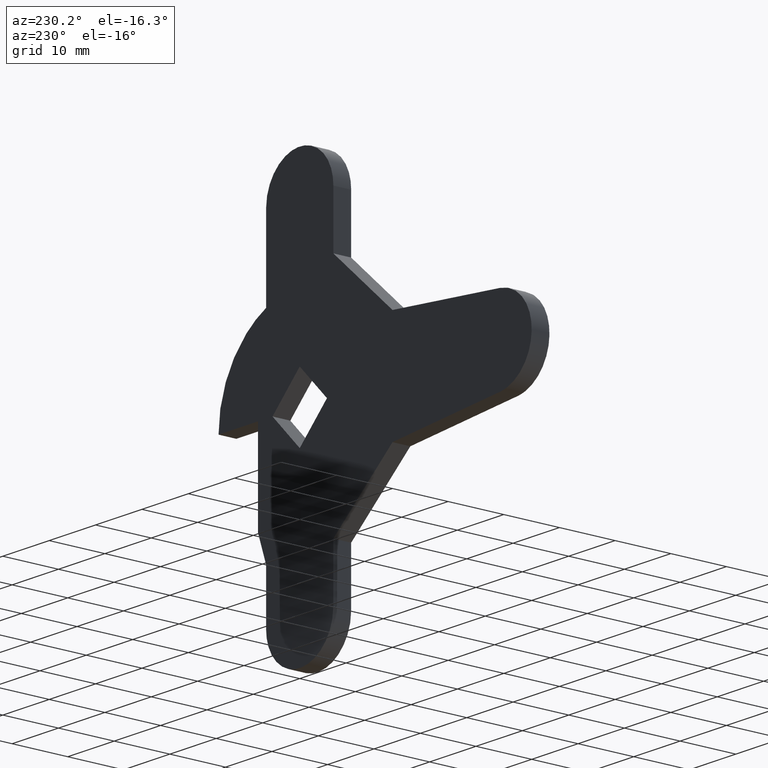
[diagram: clean part render]
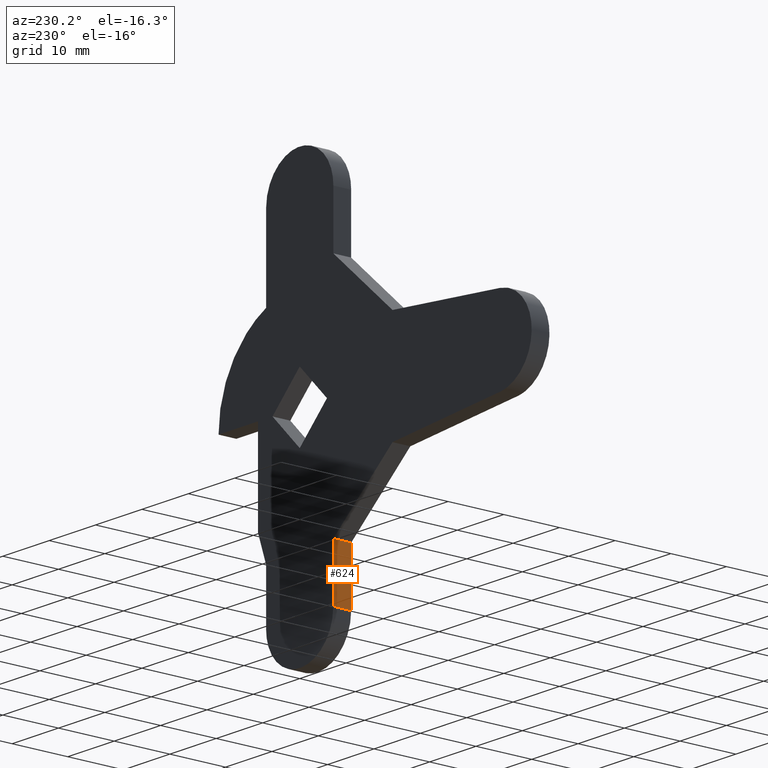
[diagram: same view with one face highlighted and labeled with its STEP entity id]
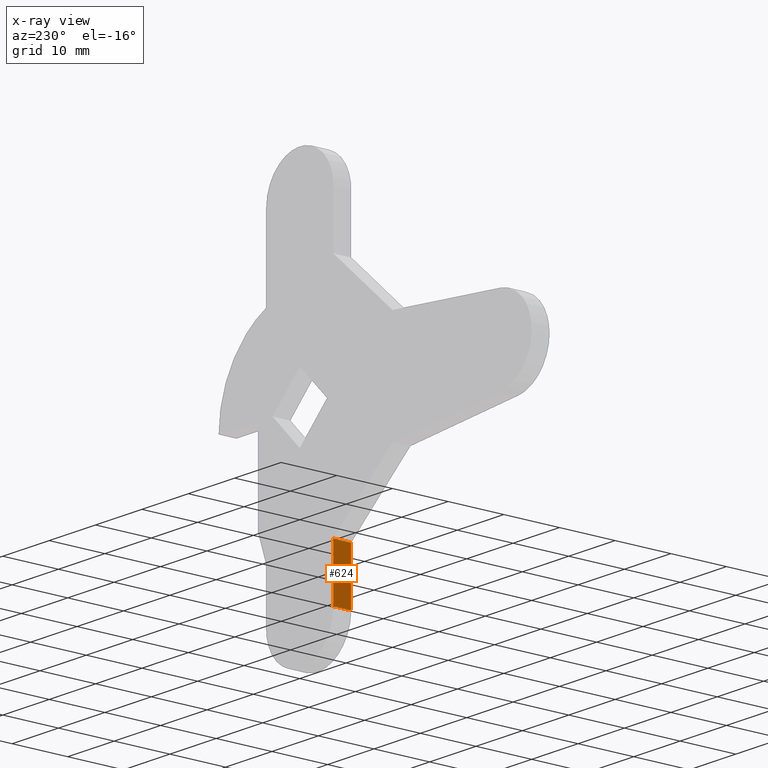
[diagram: x-ray of the same camera — body ghosted, the highlighted face saturated]
A machine part, auxiliary view. The second image highlights one B-rep face of the part: STEP entity #624.
The next image is the same camera in x-ray: the body ghosted, the highlighted face saturated — about 0% of this face is hidden behind the body in this view.
In plain terms, the highlighted face is a freeform B-spline surface patch.
Its self-contained STEP definition (entity closure, byte-faithful):
#132=CARTESIAN_POINT('',(-7.250000000000000,0.0,-30.250000000000000));
#133=VERTEX_POINT('',#132);
#149=CARTESIAN_POINT('',(-7.250000000000000,0.0,-20.500000000000000));
#150=VERTEX_POINT('',#149);
#151=CARTESIAN_POINT('',(-7.250000000000000,0.0,-20.500000000000000));
#152=CARTESIAN_POINT('',(-7.250000000000000,0.0,-30.250000000000000));
#153=QUASI_UNIFORM_CURVE('',1,(#151,#152),.UNSPECIFIED.,.F.,.U.);
#154=EDGE_CURVE('',#150,#133,#153,.T.);
#270=CARTESIAN_POINT('',(-7.250000000000000,-3.200000000000000,-20.500000000000000));
#271=VERTEX_POINT('',#270);
#277=CARTESIAN_POINT('',(-7.250000000000000,-3.200000000000000,-30.250000000000000));
#278=VERTEX_POINT('',#277);
#279=CARTESIAN_POINT('',(-7.250000000000000,-3.200000000000000,-20.500000000000000));
#280=CARTESIAN_POINT('',(-7.250000000000000,-3.200000000000000,-30.250000000000000));
#281=QUASI_UNIFORM_CURVE('',1,(#279,#280),.UNSPECIFIED.,.F.,.U.);
#282=EDGE_CURVE('',#271,#278,#281,.T.);
#601=CARTESIAN_POINT('',(-7.250000000000000,-3.200000000000000,-30.250000000000000));
#602=CARTESIAN_POINT('',(-7.250000000000000,0.0,-30.250000000000000));
#603=QUASI_UNIFORM_CURVE('',1,(#601,#602),.UNSPECIFIED.,.F.,.U.);
#604=EDGE_CURVE('',#278,#133,#603,.T.);
#609=CARTESIAN_POINT('',(-7.250000000000000,-3.359840053876400,-20.012987518897390));
#610=CARTESIAN_POINT('',(-7.250000000000000,-3.359840053876400,-30.737012742617988));
#611=CARTESIAN_POINT('',(-7.250000000000000,0.159840082486629,-20.012987518897390));
#612=CARTESIAN_POINT('',(-7.250000000000000,0.159840082486629,-30.737012742617988));
#613=B_SPLINE_SURFACE_WITH_KNOTS('',1,1,((#609,#611),(#610,#612)),.UNSPECIFIED.,.F.,.F.,.U.,(2,2),(2,2),(0.0,10.724025223720609),(0.0,3.519680136363030),.UNSPECIFIED.);
#614=ORIENTED_EDGE('',*,*,#154,.T.);
#615=ORIENTED_EDGE('',*,*,#604,.F.);
#616=ORIENTED_EDGE('',*,*,#282,.F.);
#617=CARTESIAN_POINT('',(-7.250000000000000,-3.200000000000000,-20.500000000000000));
#618=CARTESIAN_POINT('',(-7.250000000000000,0.0,-20.500000000000000));
#619=QUASI_UNIFORM_CURVE('',1,(#617,#618),.UNSPECIFIED.,.F.,.U.);
#620=EDGE_CURVE('',#271,#150,#619,.T.);
#621=ORIENTED_EDGE('',*,*,#620,.T.);
#622=EDGE_LOOP('',(#614,#615,#616,#621));
#623=FACE_OUTER_BOUND('',#622,.T.);
#624=ADVANCED_FACE('',(#623),#613,.F.);